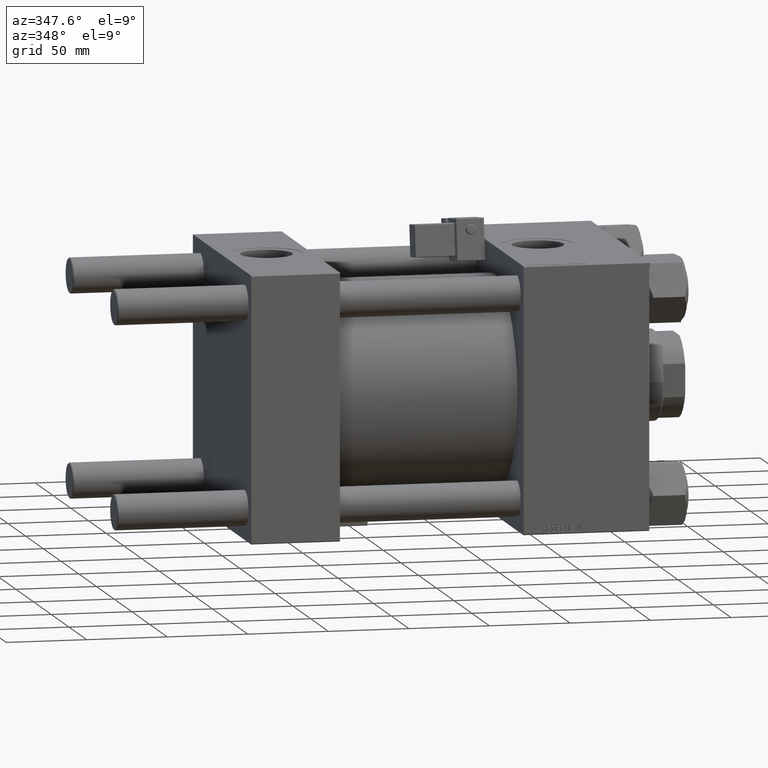
[diagram: clean part render]
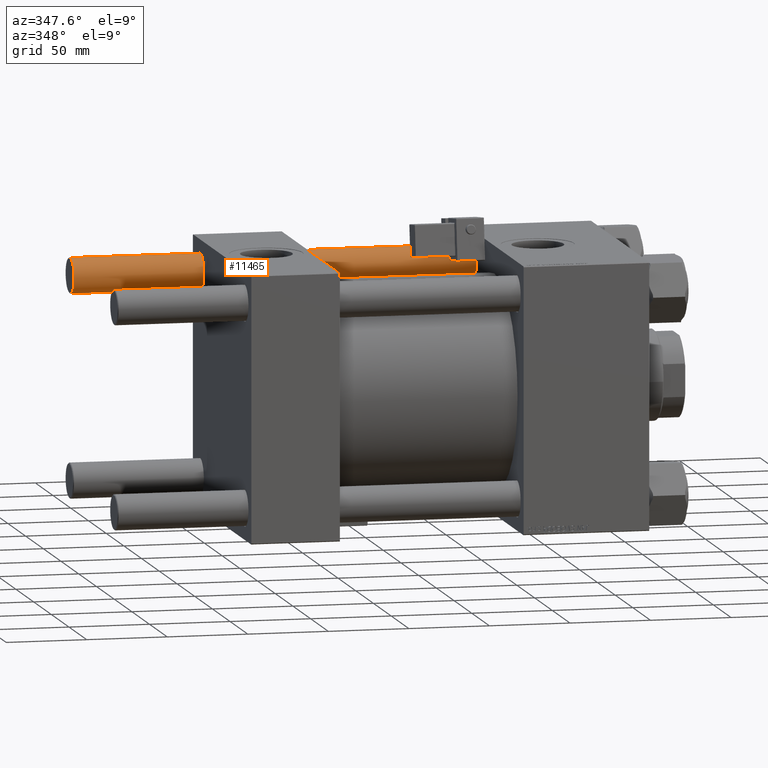
[diagram: same view with one face highlighted and labeled with its STEP entity id]
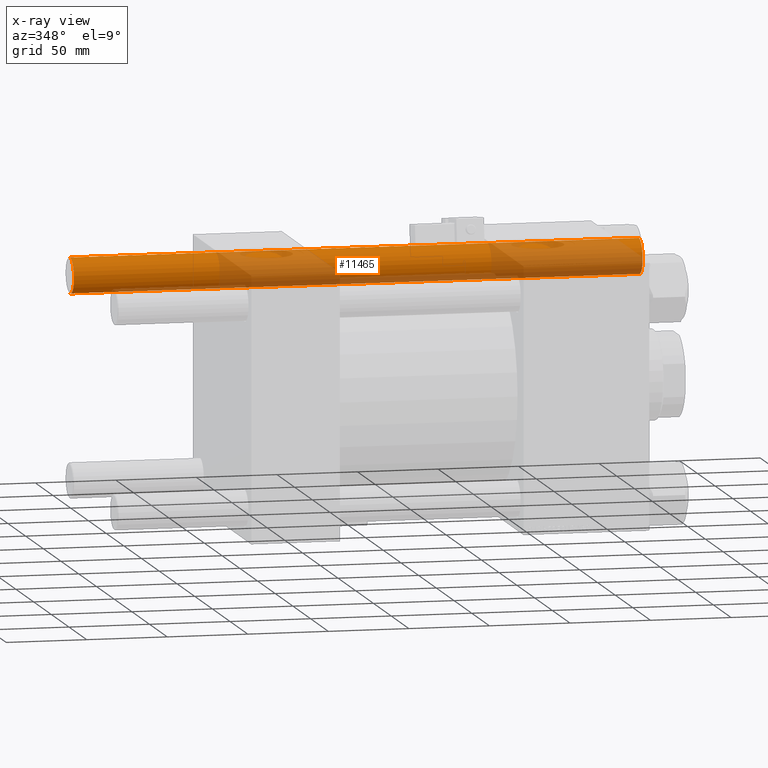
[diagram: x-ray of the same camera — body ghosted, the highlighted face saturated]
A machine part, auxiliary view. The second image highlights one B-rep face of the part: STEP entity #11465.
The next image is the same camera in x-ray: the body ghosted, the highlighted face saturated — about 50% of this face is hidden behind the body in this view.
In plain terms, the highlighted cylindrical surface (edge-blend (fillet) strip) has radius 11 mm, axis along (-1, -0, -0).
Its self-contained STEP definition (entity closure, byte-faithful):
#441 = CIRCLE ( 'NONE', #50620, 11.00000000000000000 ) ;
#2071 = AXIS2_PLACEMENT_3D ( 'NONE', #13328, #50859, #42610 ) ;
#3557 = LINE ( 'NONE', #31246, #37199 ) ;
#4245 = CARTESIAN_POINT ( 'NONE',  ( -11.00000000000000000, 0.000000000000000000, 0.5000000000001114664 ) ) ;
#5291 = DIRECTION ( 'NONE',  ( -0.000000000000000000, -0.000000000000000000, -1.000000000000000000 ) ) ;
#8984 = EDGE_CURVE ( 'NONE', #18622, #16055, #26727, .T. ) ;
#10595 = CARTESIAN_POINT ( 'NONE',  ( 11.00000000000000000, 1.347111479062088405E-15, 354.0000000000000000 ) ) ;
#10613 = DIRECTION ( 'NONE',  ( -0.000000000000000000, -0.000000000000000000, 1.000000000000000000 ) ) ;
#11465 = ADVANCED_FACE ( 'NONE', ( #22693 ), #34668, .T. ) ;
#12630 = VERTEX_POINT ( 'NONE', #41493 ) ;
#13328 = CARTESIAN_POINT ( 'NONE',  ( 0.000000000000000000, 0.000000000000000000, 353.5000000000000568 ) ) ;
#14533 = VERTEX_POINT ( 'NONE', #4245 ) ;
#16020 = CARTESIAN_POINT ( 'NONE',  ( 11.00000000000000000, 1.347111479062088405E-15, 353.5000000000000568 ) ) ;
#16055 = VERTEX_POINT ( 'NONE', #44868 ) ;
#16704 = EDGE_LOOP ( 'NONE', ( #37818, #26586, #33569, #35228 ) ) ;
#18595 = DIRECTION ( 'NONE',  ( 1.000000000000000000, 0.000000000000000000, 0.000000000000000000 ) ) ;
#18622 = VERTEX_POINT ( 'NONE', #16020 ) ;
#19778 = DIRECTION ( 'NONE',  ( -0.000000000000000000, -0.000000000000000000, -1.000000000000000000 ) ) ;
#20323 = EDGE_CURVE ( 'NONE', #16055, #14533, #3557, .T. ) ;
#22421 = CARTESIAN_POINT ( 'NONE',  ( 0.000000000000000000, 0.000000000000000000, 354.0000000000000000 ) ) ;
#22573 = LINE ( 'NONE', #10595, #24037 ) ;
#22693 = FACE_OUTER_BOUND ( 'NONE', #16704, .T. ) ;
#23378 = CARTESIAN_POINT ( 'NONE',  ( 0.000000000000000000, 0.000000000000000000, 0.5000000000001114664 ) ) ;
#24037 = VECTOR ( 'NONE', #5291, 1000.000000000000000 ) ;
#26418 = DIRECTION ( 'NONE',  ( -0.000000000000000000, -0.000000000000000000, -1.000000000000000000 ) ) ;
#26586 = ORIENTED_EDGE ( 'NONE', *, *, #8984, .T. ) ;
#26727 = CIRCLE ( 'NONE', #2071, 11.00000000000000000 ) ;
#30662 = DIRECTION ( 'NONE',  ( -1.000000000000000000, 0.000000000000000000, 0.000000000000000000 ) ) ;
#31246 = CARTESIAN_POINT ( 'NONE',  ( -11.00000000000000000, 0.000000000000000000, 354.0000000000000000 ) ) ;
#33569 = ORIENTED_EDGE ( 'NONE', *, *, #20323, .T. ) ;
#34668 = CYLINDRICAL_SURFACE ( 'NONE', #36983, 11.00000000000000000 ) ;
#35228 = ORIENTED_EDGE ( 'NONE', *, *, #44181, .T. ) ;
#36983 = AXIS2_PLACEMENT_3D ( 'NONE', #22421, #26418, #30662 ) ;
#37199 = VECTOR ( 'NONE', #19778, 1000.000000000000000 ) ;
#37818 = ORIENTED_EDGE ( 'NONE', *, *, #39688, .F. ) ;
#39688 = EDGE_CURVE ( 'NONE', #18622, #12630, #22573, .T. ) ;
#41493 = CARTESIAN_POINT ( 'NONE',  ( 11.00000000000000000, 1.347111479062088405E-15, 0.5000000000001114664 ) ) ;
#42610 = DIRECTION ( 'NONE',  ( 1.000000000000000000, 0.000000000000000000, 0.000000000000000000 ) ) ;
#44181 = EDGE_CURVE ( 'NONE', #14533, #12630, #441, .T. ) ;
#44868 = CARTESIAN_POINT ( 'NONE',  ( -11.00000000000000000, 0.000000000000000000, 353.5000000000000568 ) ) ;
#50620 = AXIS2_PLACEMENT_3D ( 'NONE', #23378, #10613, #18595 ) ;
#50859 = DIRECTION ( 'NONE',  ( 0.000000000000000000, 0.000000000000000000, -1.000000000000000000 ) ) ;